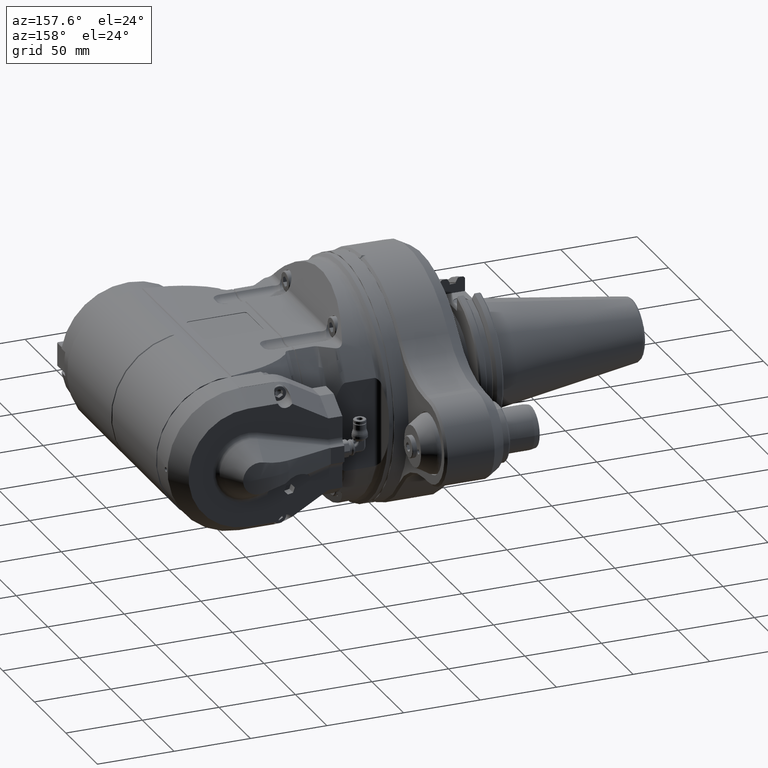
[diagram: clean part render]
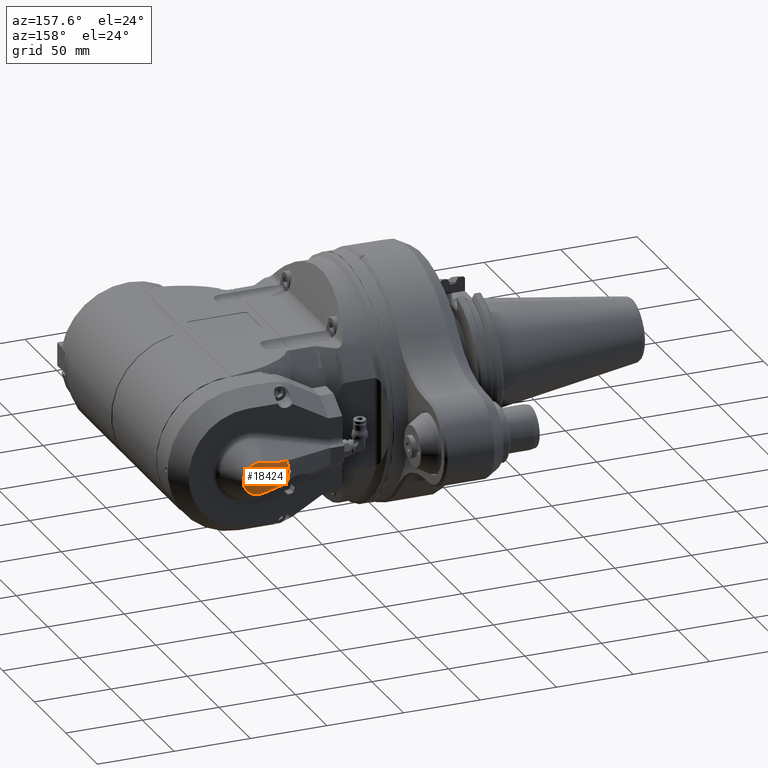
[diagram: same view with one face highlighted and labeled with its STEP entity id]
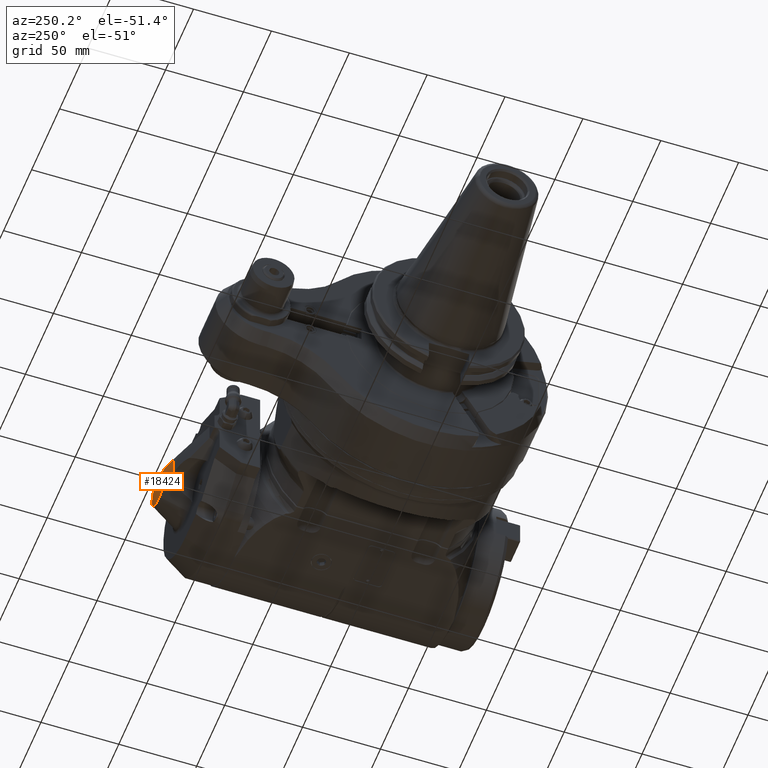
[diagram: same view with one face highlighted and labeled with its STEP entity id]
A machine part, auxiliary view. The second image highlights one B-rep face of the part: STEP entity #18424.
A second angle (auxiliary view) of the same face is appended — the face is thin or edge-on in the first view.
In plain terms, the highlighted spherical surface has radius 60 mm.
Its self-contained STEP definition (entity closure, byte-faithful):
#116=SPHERICAL_SURFACE('',#19669,60.);
#625=B_SPLINE_CURVE_WITH_KNOTS('',3,(#27964,#27965,#27966,#27967,#27968,
#27969),.UNSPECIFIED.,.F.,.F.,(4,2,4),(-1.45167659350347,-1.3940086096192,
-1.29817902270764),.UNSPECIFIED.);
#1587=FACE_OUTER_BOUND('',#2667,.T.);
#2667=EDGE_LOOP('',(#12923,#12924,#12925,#12926,#12927,#12928,#12929,#12930));
#6785=CIRCLE('',#19661,10.53852618431);
#6786=CIRCLE('',#19663,45.88447185846);
#6787=CIRCLE('',#19665,20.52120859954);
#6788=CIRCLE('',#19666,20.52120859954);
#6789=CIRCLE('',#19670,60.);
#6790=CIRCLE('',#19671,45.88447185845);
#7820=VERTEX_POINT('',#27949);
#7821=VERTEX_POINT('',#27963);
#7825=VERTEX_POINT('',#27989);
#7826=VERTEX_POINT('',#27991);
#7827=VERTEX_POINT('',#27995);
#7828=VERTEX_POINT('',#28005);
#7829=VERTEX_POINT('',#28014);
#9831=EDGE_CURVE('',#7820,#7821,#625,.T.);
#9839=EDGE_CURVE('',#7826,#7825,#6785,.T.);
#9843=EDGE_CURVE('',#7827,#7826,#6786,.T.);
#9845=EDGE_CURVE('',#7828,#7827,#6787,.T.);
#9846=EDGE_CURVE('',#7820,#7828,#6788,.T.);
#9848=EDGE_CURVE('',#7829,#7828,#6789,.T.);
#9849=EDGE_CURVE('',#7821,#7825,#6790,.T.);
#12923=ORIENTED_EDGE('',*,*,#9831,.F.);
#12924=ORIENTED_EDGE('',*,*,#9846,.T.);
#12925=ORIENTED_EDGE('',*,*,#9848,.F.);
#12926=ORIENTED_EDGE('',*,*,#9848,.T.);
#12927=ORIENTED_EDGE('',*,*,#9845,.T.);
#12928=ORIENTED_EDGE('',*,*,#9843,.T.);
#12929=ORIENTED_EDGE('',*,*,#9839,.T.);
#12930=ORIENTED_EDGE('',*,*,#9849,.F.);
#18424=ADVANCED_FACE('',(#1587),#116,.T.);
#19661=AXIS2_PLACEMENT_3D('',#27992,#22007,#22008);
#19663=AXIS2_PLACEMENT_3D('',#28000,#22013,#22014);
#19665=AXIS2_PLACEMENT_3D('',#28006,#22017,#22018);
#19666=AXIS2_PLACEMENT_3D('',#28007,#22019,#22020);
#19669=AXIS2_PLACEMENT_3D('',#28013,#22025,#22026);
#19670=AXIS2_PLACEMENT_3D('',#28015,#22027,#22028);
#19671=AXIS2_PLACEMENT_3D('',#28016,#22029,#22030);
#22007=DIRECTION('center_axis',(0.,1.,4.660711712401E-9));
#22008=DIRECTION('ref_axis',(-0.258819045102493,-4.50190181189611E-9,0.965925826289076));
#22013=DIRECTION('center_axis',(0.224143868041998,-0.499999996101196,-0.836516306068193));
#22014=DIRECTION('ref_axis',(-0.228415555916203,0.807493882872504,-0.543856564673977));
#22017=DIRECTION('center_axis',(0.,1.,4.660711712401E-9));
#22018=DIRECTION('ref_axis',(-0.947286180412871,1.49323917248851E-9,-0.32038865834919));
#22019=DIRECTION('center_axis',(0.,1.,4.660711712401E-9));
#22020=DIRECTION('ref_axis',(-0.947286180412871,1.49323917248851E-9,-0.32038865834919));
#22025=DIRECTION('center_axis',(0.,1.,4.660711712401E-9));
#22026=DIRECTION('ref_axis',(1.,0.,0.));
#22027=DIRECTION('center_axis',(1.22464679743979E-16,-4.660711712401E-9,
1.));
#22028=DIRECTION('ref_axis',(-1.,0.,1.22464679743979E-16));
#22029=DIRECTION('center_axis',(-0.224143868041987,0.500000003898772,-0.836516301407453));
#22030=DIRECTION('ref_axis',(-7.07767178198492E-16,0.858356261182847,0.513054118868765));
#27949=CARTESIAN_POINT('',(73.560537991835,116.381556166437,-6.57475736556026));
#27963=CARTESIAN_POINT('',(74.8429379195575,116.697881246076,-7.46132360672285));
#27964=CARTESIAN_POINT('Ctrl Pts',(73.5605373301221,116.381555793397,-6.5747586079463));
#27965=CARTESIAN_POINT('Ctrl Pts',(73.7270972640689,116.427045337284,-6.67712956723337));
#27966=CARTESIAN_POINT('Ctrl Pts',(73.891619374698,116.470364432794,-6.78289169110168));
#27967=CARTESIAN_POINT('Ctrl Pts',(74.3234891494858,116.57977075484,-7.0730223449584));
#27968=CARTESIAN_POINT('Ctrl Pts',(74.586846225631,116.64195374628,-7.2631146635027));
#27969=CARTESIAN_POINT('Ctrl Pts',(74.8429379097991,116.69788125833,-7.4613236158732));
#27989=CARTESIAN_POINT('',(90.27242879316,119.067245335,-10.17943405751));
#27991=CARTESIAN_POINT('',(90.27242879316,119.0672452401,10.17943516738));
#27992=CARTESIAN_POINT('Origin',(93.00000007697,119.0672452876,5.549381046751E-7));
#27995=CARTESIAN_POINT('',(73.85381404998,116.3815572127,7.385361942216));
#28000=CARTESIAN_POINT('Origin',(84.33454119744,79.33012686819,32.33993317904));
#28005=CARTESIAN_POINT('',(72.47879147743,116.3815572472,5.42420889482656E-7));
#28006=CARTESIAN_POINT('Origin',(93.00000007697,116.3815572472,5.424208869693E-7));
#28007=CARTESIAN_POINT('Origin',(93.00000007697,116.3815572472,5.424208869693E-7));
#28013=CARTESIAN_POINT('Origin',(93.00000007697,60.,2.796427027441E-7));
#28014=CARTESIAN_POINT('',(93.00000007697,120.,5.5928540548816E-7));
#28015=CARTESIAN_POINT('Origin',(93.00000007697,60.,2.796427027441E-7));
#28016=CARTESIAN_POINT('Origin',(84.33454119744,79.33012716965,-32.33993243957));